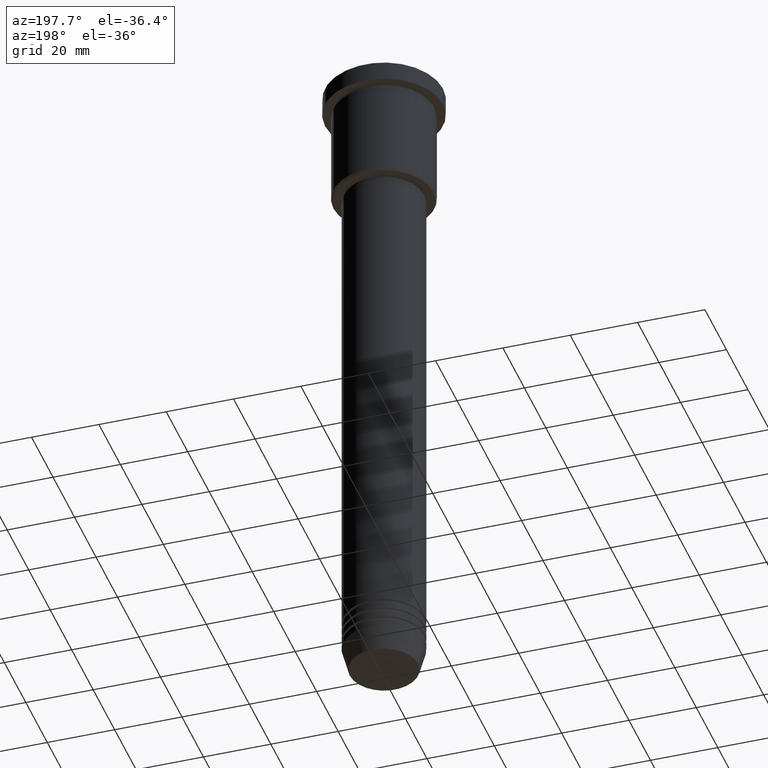
[diagram: clean part render]
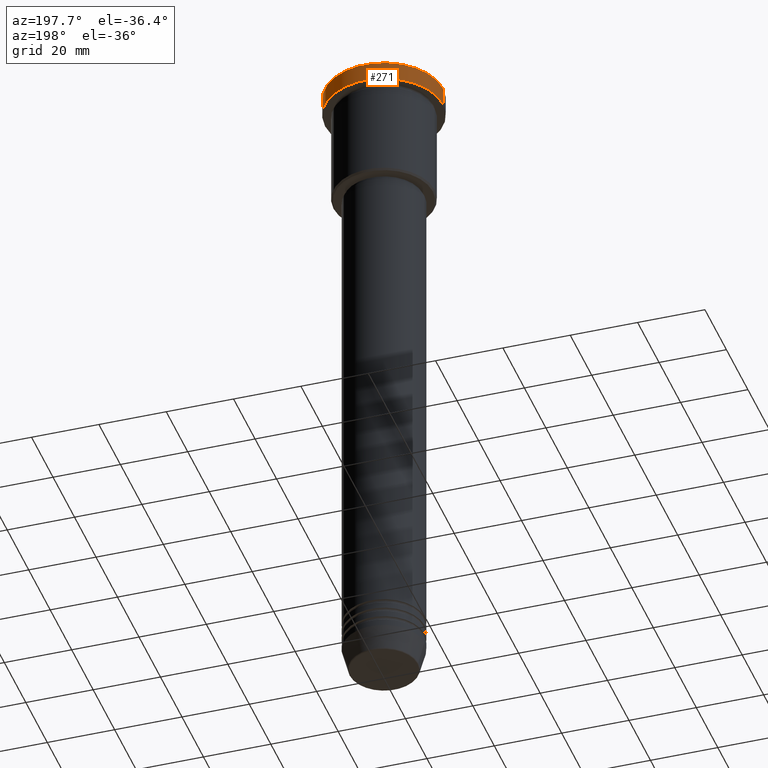
[diagram: same view with one face highlighted and labeled with its STEP entity id]
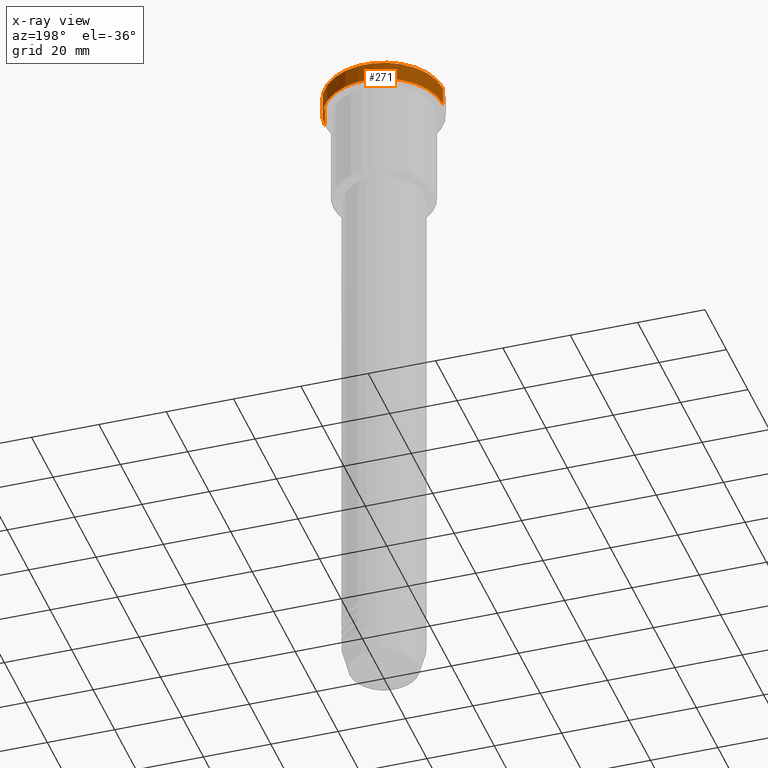
[diagram: x-ray of the same camera — body ghosted, the highlighted face saturated]
A machine part, auxiliary view. The second image highlights one B-rep face of the part: STEP entity #271.
The next image is the same camera in x-ray: the body ghosted, the highlighted face saturated — about 0% of this face is hidden behind the body in this view.
In plain terms, the highlighted cylindrical surface (partial cylindrical patch) has radius 17.5 mm, axis along (-0, -0, 1).
Its self-contained STEP definition (entity closure, byte-faithful):
#57 = DIRECTION ( 'NONE',  ( -0.000000000000000000, -0.000000000000000000, 1.000000000000000000 ) ) ;
#80 = ORIENTED_EDGE ( 'NONE', *, *, #665, .T. ) ;
#95 = DIRECTION ( 'NONE',  ( 1.000000000000000000, 0.000000000000000000, 0.000000000000000000 ) ) ;
#144 = CYLINDRICAL_SURFACE ( 'NONE', #553, 17.50000000000000000 ) ;
#145 = EDGE_CURVE ( 'NONE', #277, #1016, #1055, .T. ) ;
#156 = CARTESIAN_POINT ( 'NONE',  ( 0.000000000000000000, 0.000000000000000000, -5.999999999999995559 ) ) ;
#217 = EDGE_CURVE ( 'NONE', #446, #724, #405, .T. ) ;
#271 = ADVANCED_FACE ( 'NONE', ( #791 ), #144, .T. ) ;
#277 = VERTEX_POINT ( 'NONE', #865 ) ;
#310 = CARTESIAN_POINT ( 'NONE',  ( 17.50000000000000000, 0.000000000000000000, -5.999999999999995559 ) ) ;
#316 = AXIS2_PLACEMENT_3D ( 'NONE', #353, #359, #95 ) ;
#328 = EDGE_CURVE ( 'NONE', #1016, #724, #429, .T. ) ;
#336 = CARTESIAN_POINT ( 'NONE',  ( -17.50000000000000000, 2.143131898507868248E-15, 0.000000000000000000 ) ) ;
#353 = CARTESIAN_POINT ( 'NONE',  ( 0.000000000000000000, 0.000000000000000000, -0.5000000000000003331 ) ) ;
#356 = EDGE_LOOP ( 'NONE', ( #80, #541, #649, #438 ) ) ;
#359 = DIRECTION ( 'NONE',  ( 0.000000000000000000, 0.000000000000000000, -1.000000000000000000 ) ) ;
#405 = LINE ( 'NONE', #1145, #436 ) ;
#429 = CIRCLE ( 'NONE', #316, 17.50000000000000000 ) ;
#436 = VECTOR ( 'NONE', #780, 1000.000000000000000 ) ;
#438 = ORIENTED_EDGE ( 'NONE', *, *, #217, .F. ) ;
#446 = VERTEX_POINT ( 'NONE', #310 ) ;
#541 = ORIENTED_EDGE ( 'NONE', *, *, #145, .T. ) ;
#553 = AXIS2_PLACEMENT_3D ( 'NONE', #608, #977, #1153 ) ;
#586 = DIRECTION ( 'NONE',  ( -0.000000000000000000, -0.000000000000000000, 1.000000000000000000 ) ) ;
#608 = CARTESIAN_POINT ( 'NONE',  ( 0.000000000000000000, 0.000000000000000000, 0.000000000000000000 ) ) ;
#649 = ORIENTED_EDGE ( 'NONE', *, *, #328, .T. ) ;
#660 = VECTOR ( 'NONE', #586, 1000.000000000000000 ) ;
#665 = EDGE_CURVE ( 'NONE', #446, #277, #758, .T. ) ;
#724 = VERTEX_POINT ( 'NONE', #808 ) ;
#758 = CIRCLE ( 'NONE', #1136, 17.50000000000000000 ) ;
#780 = DIRECTION ( 'NONE',  ( -0.000000000000000000, -0.000000000000000000, 1.000000000000000000 ) ) ;
#791 = FACE_OUTER_BOUND ( 'NONE', #356, .T. ) ;
#808 = CARTESIAN_POINT ( 'NONE',  ( 17.50000000000000000, 0.000000000000000000, -0.5000000000000003331 ) ) ;
#865 = CARTESIAN_POINT ( 'NONE',  ( -17.50000000000000000, 2.143131898507868248E-15, -5.999999999999995559 ) ) ;
#945 = DIRECTION ( 'NONE',  ( 1.000000000000000000, 0.000000000000000000, 0.000000000000000000 ) ) ;
#977 = DIRECTION ( 'NONE',  ( -0.000000000000000000, -0.000000000000000000, 1.000000000000000000 ) ) ;
#1016 = VERTEX_POINT ( 'NONE', #1058 ) ;
#1055 = LINE ( 'NONE', #336, #660 ) ;
#1058 = CARTESIAN_POINT ( 'NONE',  ( -17.50000000000000000, 2.143131898507868248E-15, -0.5000000000000003331 ) ) ;
#1136 = AXIS2_PLACEMENT_3D ( 'NONE', #156, #57, #945 ) ;
#1145 = CARTESIAN_POINT ( 'NONE',  ( 17.50000000000000000, 0.000000000000000000, 0.000000000000000000 ) ) ;
#1153 = DIRECTION ( 'NONE',  ( 1.000000000000000000, 0.000000000000000000, 0.000000000000000000 ) ) ;